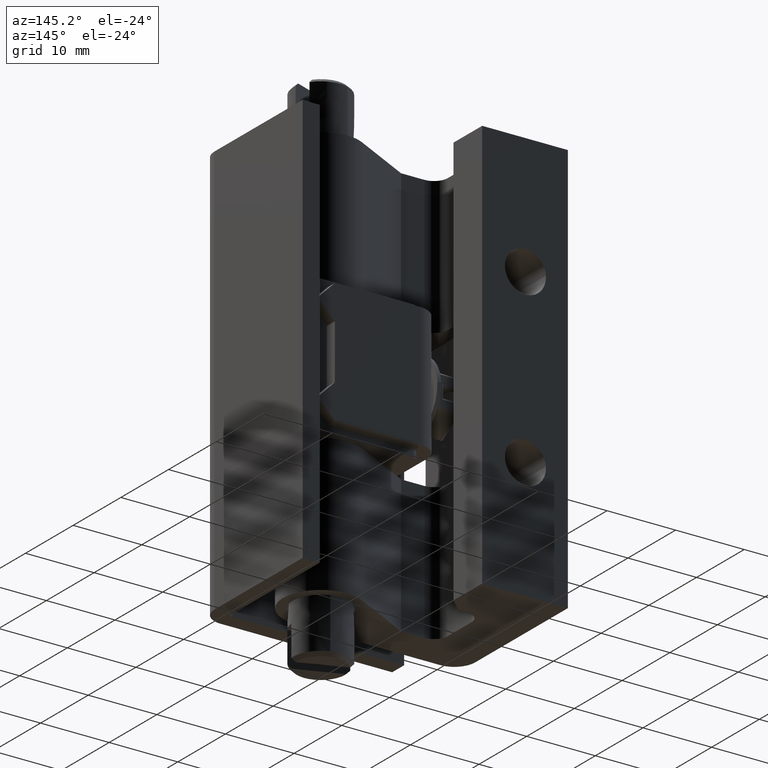
[diagram: clean part render]
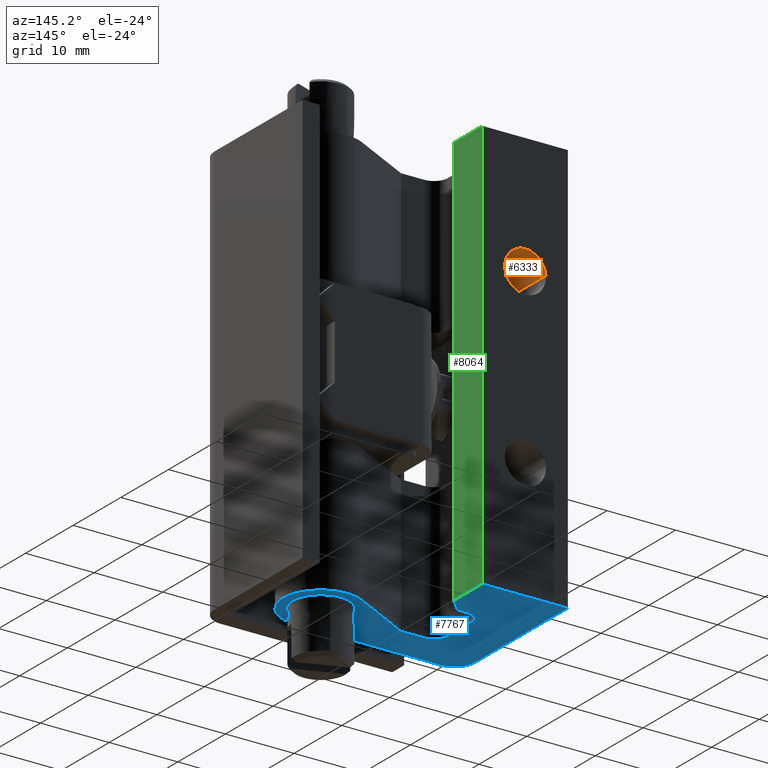
[diagram: same view with three faces highlighted in distinct colors, each labeled with its STEP entity id]
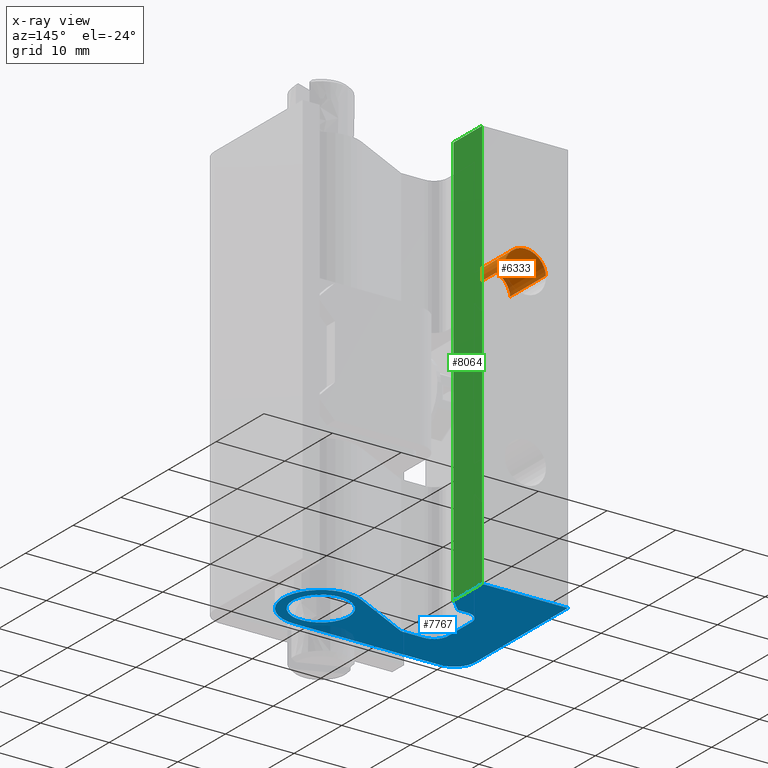
[diagram: x-ray of the same camera — body ghosted, the three highlighted faces saturated]
A machine part, auxiliary view with three faces highlighted in distinct colors.
The next image is the same camera in x-ray (body ghosted, the three faces saturated) — at least one of them is partly hidden behind the body in this view.
Their STEP definitions:

[orange] entity #6333 — the highlighted face is a freeform B-spline surface patch.
#6231=CARTESIAN_POINT('',(-20.994063378338783,9.312500807456608,50.493324434760829));
#6232=CARTESIAN_POINT('',(-20.992413332187677,9.312500807456608,50.514290258980928));
#6233=CARTESIAN_POINT('',(-20.755376331909403,9.312500807456607,53.526130914565321));
#6234=CARTESIAN_POINT('',(-17.764624330710010,9.312500807456607,53.290753627381783));
#6235=CARTESIAN_POINT('',(-14.773872329510626,9.312500807456607,53.055376340198244));
#6236=CARTESIAN_POINT('',(-15.010908922371899,9.312500807456608,50.043540861337704));
#6237=CARTESIAN_POINT('',(-15.012558565844479,9.312500807456603,50.022580153633285));
#6238=CARTESIAN_POINT('',(-20.994063378338783,17.192188307456657,50.493324434760829));
#6239=CARTESIAN_POINT('',(-20.992413332187677,17.192188307456657,50.514290258980928));
#6240=CARTESIAN_POINT('',(-20.755376331909403,17.192188307456647,53.526130914565321));
#6241=CARTESIAN_POINT('',(-17.764624330710010,17.192188307456650,53.290753627381783));
#6242=CARTESIAN_POINT('',(-14.773872329510626,17.192188307456647,53.055376340198244));
#6243=CARTESIAN_POINT('',(-15.010908922371899,17.192188307456661,50.043540861337704));
#6244=CARTESIAN_POINT('',(-15.012558565844479,17.192188307456650,50.022580153633285));
#6252=(BOUNDED_SURFACE()B_SPLINE_SURFACE(2,1,((#6231,#6238),(#6232,#6239),(#6233,#6240),(#6234,#6241),(#6235,#6242),(#6236,#6243),(#6237,#6244)),.UNSPECIFIED.,.F.,.F.,.U.)B_SPLINE_SURFACE_WITH_KNOTS((3,1,2,1,3),(2,2),(0.0,0.049711783310515,5.020274531787670,9.990837280264824,10.040536824870060),(0.0,7.879687500000051),.UNSPECIFIED.)GEOMETRIC_REPRESENTATION_ITEM()RATIONAL_B_SPLINE_SURFACE(((1.005858589847290,1.005858589847290),(1.002929294923645,1.002929294923645),(0.707106781186548,0.707106781186548),(1.0,1.0),(0.707106781186548,0.707106781186548),(1.002928573751020,1.002928573751020),(1.005857147502041,1.005857147502041)))REPRESENTATION_ITEM('')SURFACE());
#6253=CARTESIAN_POINT('',(-18.000001617893549,9.500000807456610,53.300001626182407));
#6254=VERTEX_POINT('',#6253);
#6255=CARTESIAN_POINT('',(-20.990754031382910,9.500000807456525,50.535373674607712));
#6256=VERTEX_POINT('',#6255);
#6257=CARTESIAN_POINT('',(-18.000001617893549,9.500000807456610,53.300001626182407));
#6258=CARTESIAN_POINT('',(-20.773177965524965,9.500000807456610,53.300001626182407));
#6259=CARTESIAN_POINT('',(-20.990754031382917,9.500000807456523,50.535373674607719));
#6267=(BOUNDED_CURVE()B_SPLINE_CURVE(2,(#6257,#6258,#6259),.UNSPECIFIED.,.F.,.U.)B_SPLINE_CURVE_WITH_KNOTS((3,3),(0.0,0.236331600908960),.UNSPECIFIED.)CURVE()GEOMETRIC_REPRESENTATION_ITEM()RATIONAL_B_SPLINE_CURVE((1.0,0.723120306809754,0.969723982826167))REPRESENTATION_ITEM(''));
#6268=EDGE_CURVE('',#6254,#6256,#6267,.T.);
#6269=ORIENTED_EDGE('',*,*,#6268,.T.);
#6270=CARTESIAN_POINT('',(-20.990754026399159,17.000000807456651,50.535373737935082));
#6271=VERTEX_POINT('',#6270);
#6272=CARTESIAN_POINT('',(-20.990754031382910,9.500000807456525,50.535373674607712));
#6273=CARTESIAN_POINT('',(-20.990754026399159,17.000000807456651,50.535373737935082));
#6274=QUASI_UNIFORM_CURVE('',1,(#6272,#6273),.UNSPECIFIED.,.F.,.U.);
#6275=EDGE_CURVE('',#6256,#6271,#6274,.T.);
#6276=ORIENTED_EDGE('',*,*,#6275,.T.);
#6277=CARTESIAN_POINT('',(-18.000001617893549,17.000000807456651,53.300001626182407));
#6278=VERTEX_POINT('',#6277);
#6279=CARTESIAN_POINT('',(-18.000001617893549,17.000000807456651,53.300001626182407));
#6280=CARTESIAN_POINT('',(-20.773177906623072,17.000000807456651,53.300001626182386));
#6281=CARTESIAN_POINT('',(-20.990754026399166,17.000000807456651,50.535373737935075));
#6289=(BOUNDED_CURVE()B_SPLINE_CURVE(2,(#6279,#6280,#6281),.UNSPECIFIED.,.F.,.U.)B_SPLINE_CURVE_WITH_KNOTS((3,3),(0.0,0.236331597279148),.UNSPECIFIED.)CURVE()GEOMETRIC_REPRESENTATION_ITEM()RATIONAL_B_SPLINE_CURVE((1.0,0.723120311062343,0.969723975251008))REPRESENTATION_ITEM(''));
#6290=EDGE_CURVE('',#6278,#6271,#6289,.T.);
#6291=ORIENTED_EDGE('',*,*,#6290,.F.);
#6292=CARTESIAN_POINT('',(-15.009249209387940,17.000000807456651,50.064629514429733));
#6293=VERTEX_POINT('',#6292);
#6294=CARTESIAN_POINT('',(-15.009249209387933,17.000000807456647,50.064629514429726));
#6295=CARTESIAN_POINT('',(-15.000001617893554,17.000000807456651,50.182133904883152));
#6296=CARTESIAN_POINT('',(-15.000001617893551,17.000000807456651,50.300001626182400));
#6297=CARTESIAN_POINT('',(-15.000001617893560,17.000000807456647,53.300001626182400));
#6298=CARTESIAN_POINT('',(-18.000001617893549,17.000000807456651,53.300001626182407));
#6306=(BOUNDED_CURVE()B_SPLINE_CURVE(2,(#6294,#6295,#6296,#6297,#6298),.UNSPECIFIED.,.F.,.U.)B_SPLINE_CURVE_WITH_KNOTS((3,2,3),(0.736331597279148,0.750000000000000,1.0),.UNSPECIFIED.)CURVE()GEOMETRIC_REPRESENTATION_ITEM()RATIONAL_B_SPLINE_CURVE((0.969723975251008,0.983986470124205,1.0,0.707106781186548,1.0))REPRESENTATION_ITEM(''));
#6307=EDGE_CURVE('',#6293,#6278,#6306,.T.);
#6308=ORIENTED_EDGE('',*,*,#6307,.F.);
#6309=CARTESIAN_POINT('',(-15.009249204404190,9.500000807456525,50.064629577757088));
#6310=VERTEX_POINT('',#6309);
#6311=CARTESIAN_POINT('',(-15.009249204404190,9.500000807456525,50.064629577757088));
#6312=CARTESIAN_POINT('',(-15.009249209387940,17.000000807456651,50.064629514429733));
#6313=QUASI_UNIFORM_CURVE('',1,(#6311,#6312),.UNSPECIFIED.,.F.,.U.);
#6314=EDGE_CURVE('',#6310,#6293,#6313,.T.);
#6315=ORIENTED_EDGE('',*,*,#6314,.F.);
#6316=CARTESIAN_POINT('',(-15.009249204404188,9.500000807456525,50.064629577757088));
#6317=CARTESIAN_POINT('',(-15.000001617893551,9.500000807456610,50.182133936693766));
#6318=CARTESIAN_POINT('',(-15.000001617893551,9.500000807456610,50.300001626182400));
#6319=CARTESIAN_POINT('',(-15.000001617893560,9.500000807456610,53.300001626182400));
#6320=CARTESIAN_POINT('',(-18.000001617893549,9.500000807456610,53.300001626182407));
#6328=(BOUNDED_CURVE()B_SPLINE_CURVE(2,(#6316,#6317,#6318,#6319,#6320),.UNSPECIFIED.,.F.,.U.)B_SPLINE_CURVE_WITH_KNOTS((3,2,3),(0.736331600908960,0.750000000000000,1.0),.UNSPECIFIED.)CURVE()GEOMETRIC_REPRESENTATION_ITEM()RATIONAL_B_SPLINE_CURVE((0.969723982826167,0.983986474376793,1.0,0.707106781186548,1.0))REPRESENTATION_ITEM(''));
#6329=EDGE_CURVE('',#6310,#6254,#6328,.T.);
#6330=ORIENTED_EDGE('',*,*,#6329,.T.);
#6331=EDGE_LOOP('',(#6269,#6276,#6291,#6308,#6315,#6330));
#6332=FACE_OUTER_BOUND('',#6331,.T.);
#6333=ADVANCED_FACE('',(#6332),#6252,.F.);

[blue] entity #7767 — the highlighted face is a freeform B-spline surface patch.
#6834=CARTESIAN_POINT('',(0.483940362109844,-4.071339058088996,7.799999607540631));
#6835=VERTEX_POINT('',#6834);
#6841=CARTESIAN_POINT('',(-4.100000000000001,0.0,7.799999607540630));
#6842=VERTEX_POINT('',#6841);
#6843=CARTESIAN_POINT('',(0.483940362109844,-4.071339058088996,7.799999607540631));
#6844=CARTESIAN_POINT('',(0.242818890590147,-4.100000000000001,7.799999607540630));
#6845=CARTESIAN_POINT('',(0.0,-4.100000000000001,7.799999607540630));
#6846=CARTESIAN_POINT('',(-4.100000000000001,-4.100000000000001,7.799999607540632));
#6847=CARTESIAN_POINT('',(-4.100000000000001,0.0,7.799999607540630));
#6855=(BOUNDED_CURVE()B_SPLINE_CURVE(2,(#6843,#6844,#6845,#6846,#6847),.UNSPECIFIED.,.F.,.U.)B_SPLINE_CURVE_WITH_KNOTS((3,2,3),(0.229562473514222,0.250000000000000,0.500000000000000),.UNSPECIFIED.)CURVE()GEOMETRIC_REPRESENTATION_ITEM()RATIONAL_B_SPLINE_CURVE((0.956026754185098,0.976055948331981,1.0,0.707106781186547,1.0))REPRESENTATION_ITEM(''));
#6856=EDGE_CURVE('',#6835,#6842,#6855,.T.);
#6858=CARTESIAN_POINT('',(-0.250299012295861,4.092352673517242,7.799999607540631));
#6859=VERTEX_POINT('',#6858);
#6860=CARTESIAN_POINT('',(-4.100000000000001,0.0,7.799999607540630));
#6861=CARTESIAN_POINT('',(-4.100000000000000,3.856894873930086,7.799999607540631));
#6862=CARTESIAN_POINT('',(-0.250299012295861,4.092352673517243,7.799999607540631));
#6870=(BOUNDED_CURVE()B_SPLINE_CURVE(2,(#6860,#6861,#6862),.UNSPECIFIED.,.F.,.U.)B_SPLINE_CURVE_WITH_KNOTS((3,3),(0.500000000000000,0.739332962224854),.UNSPECIFIED.)CURVE()GEOMETRIC_REPRESENTATION_ITEM()RATIONAL_B_SPLINE_CURVE((1.0,0.719603993303216,0.976072041636523))REPRESENTATION_ITEM(''));
#6871=EDGE_CURVE('',#6842,#6859,#6870,.T.);
#6945=CARTESIAN_POINT('',(4.100000000000001,0.0,7.799999607540630));
#6946=VERTEX_POINT('',#6945);
#6947=CARTESIAN_POINT('',(-0.250299012295861,4.092352673517242,7.799999607540631));
#6948=CARTESIAN_POINT('',(-0.125266329727731,4.100000000000001,7.799999607540630));
#6949=CARTESIAN_POINT('',(0.0,4.100000000000001,7.799999607540630));
#6950=CARTESIAN_POINT('',(4.100000000000001,4.100000000000001,7.799999607540632));
#6951=CARTESIAN_POINT('',(4.100000000000001,0.0,7.799999607540630));
#6959=(BOUNDED_CURVE()B_SPLINE_CURVE(2,(#6947,#6948,#6949,#6950,#6951),.UNSPECIFIED.,.F.,.U.)B_SPLINE_CURVE_WITH_KNOTS((3,2,3),(0.739332962224854,0.750000000000000,1.0),.UNSPECIFIED.)CURVE()GEOMETRIC_REPRESENTATION_ITEM()RATIONAL_B_SPLINE_CURVE((0.976072041636524,0.987502787883332,1.0,0.707106781186547,1.0))REPRESENTATION_ITEM(''));
#6960=EDGE_CURVE('',#6859,#6946,#6959,.T.);
#6962=CARTESIAN_POINT('',(4.100000000000001,0.0,7.799999607540630));
#6963=CARTESIAN_POINT('',(4.099999999999999,-3.641515556369739,7.799999607540630));
#6964=CARTESIAN_POINT('',(0.483940362109844,-4.071339058088997,7.799999607540631));
#6972=(BOUNDED_CURVE()B_SPLINE_CURVE(2,(#6962,#6963,#6964),.UNSPECIFIED.,.F.,.U.)B_SPLINE_CURVE_WITH_KNOTS((3,3),(0.0,0.229562473514222),.UNSPECIFIED.)CURVE()GEOMETRIC_REPRESENTATION_ITEM()RATIONAL_B_SPLINE_CURVE((1.0,0.731050832854567,0.956026754185097))REPRESENTATION_ITEM(''));
#6973=EDGE_CURVE('',#6946,#6835,#6972,.T.);
#7627=CARTESIAN_POINT('',(-25.683516753970050,-6.623875401835988,7.799999607540610));
#7628=CARTESIAN_POINT('',(6.983494171195461,-6.623875401835988,7.799999607540610));
#7629=CARTESIAN_POINT('',(-25.683516753970050,18.123874741062469,7.799999607540610));
#7630=CARTESIAN_POINT('',(6.983494171195461,18.123874741062469,7.799999607540610));
#7631=B_SPLINE_SURFACE_WITH_KNOTS('',1,1,((#7627,#7629),(#7628,#7630)),.UNSPECIFIED.,.F.,.F.,.U.,(2,2),(2,2),(0.0,32.667010925165513),(0.0,24.747750142898461),.UNSPECIFIED.);
#7632=CARTESIAN_POINT('',(-2.585470971212700,4.854415173402281,7.799999607540630));
#7633=VERTEX_POINT('',#7632);
#7634=CARTESIAN_POINT('',(-0.000000762939507,-5.500000261236051,7.799999607540630));
#7635=VERTEX_POINT('',#7634);
#7636=CARTESIAN_POINT('',(-2.585470971212700,4.854415173402281,7.799999607540630));
#7637=CARTESIAN_POINT('',(0.772540669476826,6.642898182352915,7.799999607540630));
#7638=CARTESIAN_POINT('',(3.630496797682121,4.131523972569502,7.799999607540630));
#7639=CARTESIAN_POINT('',(6.488452925887415,1.620149762786091,7.799999607540630));
#7640=CARTESIAN_POINT('',(5.146521645543292,-1.939925249224952,7.799999607540630));
#7641=CARTESIAN_POINT('',(3.804590365199166,-5.500000261236001,7.799999607540630));
#7642=CARTESIAN_POINT('',(-0.000000762939507,-5.500000261236051,7.799999607540630));
#7650=(BOUNDED_CURVE()B_SPLINE_CURVE(2,(#7636,#7637,#7638,#7639,#7640,#7641,#7642),.UNSPECIFIED.,.F.,.U.)B_SPLINE_CURVE_WITH_KNOTS((3,2,2,3),(0.0,0.333333333333333,0.666666666666667,1.0),.UNSPECIFIED.)CURVE()GEOMETRIC_REPRESENTATION_ITEM()RATIONAL_B_SPLINE_CURVE((1.0,0.822409163654037,1.0,0.822409163654037,1.0,0.822409163654037,1.0))REPRESENTATION_ITEM(''));
#7651=EDGE_CURVE('',#7633,#7635,#7650,.T.);
#7652=ORIENTED_EDGE('',*,*,#7651,.T.);
#7653=CARTESIAN_POINT('',(-21.200001769885450,-5.500000261236051,7.799999607540630));
#7654=VERTEX_POINT('',#7653);
#7655=CARTESIAN_POINT('',(-0.000000762939507,-5.500000261236051,7.799999607540630));
#7656=CARTESIAN_POINT('',(-21.200001769885450,-5.500000261236051,7.799999607540630));
#7657=QUASI_UNIFORM_CURVE('',1,(#7655,#7656),.UNSPECIFIED.,.F.,.U.);
#7658=EDGE_CURVE('',#7635,#7654,#7657,.T.);
#7659=ORIENTED_EDGE('',*,*,#7658,.T.);
#7660=CARTESIAN_POINT('',(-24.200001912377800,-2.500000118743740,7.799999607540630));
#7661=VERTEX_POINT('',#7660);
#7662=CARTESIAN_POINT('',(-21.200001769885450,-5.500000261235975,7.799999607540630));
#7663=CARTESIAN_POINT('',(-24.200001912377800,-5.500000261235974,7.799999607540632));
#7664=CARTESIAN_POINT('',(-24.200001912377800,-2.500000118743740,7.799999607540630));
#7672=(BOUNDED_CURVE()B_SPLINE_CURVE(2,(#7662,#7663,#7664),.UNSPECIFIED.,.F.,.U.)CURVE()GEOMETRIC_REPRESENTATION_ITEM()QUASI_UNIFORM_CURVE()RATIONAL_B_SPLINE_CURVE((1.0,0.707106781186547,1.0))REPRESENTATION_ITEM(''));
#7673=EDGE_CURVE('',#7654,#7661,#7672,.T.);
#7674=ORIENTED_EDGE('',*,*,#7673,.T.);
#7675=CARTESIAN_POINT('',(-24.200001912377751,17.000000807456651,7.799999607540630));
#7676=VERTEX_POINT('',#7675);
#7677=CARTESIAN_POINT('',(-24.200001912377800,-2.500000118743740,7.799999607540630));
#7678=CARTESIAN_POINT('',(-24.200001912377751,17.000000807456651,7.799999607540630));
#7679=QUASI_UNIFORM_CURVE('',1,(#7677,#7678),.UNSPECIFIED.,.F.,.U.);
#7680=EDGE_CURVE('',#7661,#7676,#7679,.T.);
#7681=ORIENTED_EDGE('',*,*,#7680,.T.);
#7682=CARTESIAN_POINT('',(-11.700001318659620,17.000000807456651,7.799999607540630));
#7683=VERTEX_POINT('',#7682);
#7684=CARTESIAN_POINT('',(-24.200001912377751,17.000000807456651,7.799999607540630));
#7685=CARTESIAN_POINT('',(-11.700001318659620,17.000000807456651,7.799999607540630));
#7686=QUASI_UNIFORM_CURVE('',1,(#7684,#7685),.UNSPECIFIED.,.F.,.U.);
#7687=EDGE_CURVE('',#7676,#7683,#7686,.T.);
#7688=ORIENTED_EDGE('',*,*,#7687,.T.);
#7689=CARTESIAN_POINT('',(-11.700001318659620,11.000000522471920,7.799999607540630));
#7690=VERTEX_POINT('',#7689);
#7691=CARTESIAN_POINT('',(-11.700001318659620,17.000000807456651,7.799999607540630));
#7692=CARTESIAN_POINT('',(-11.700001318659620,11.000000522471920,7.799999607540630));
#7693=QUASI_UNIFORM_CURVE('',1,(#7691,#7692),.UNSPECIFIED.,.F.,.U.);
#7694=EDGE_CURVE('',#7683,#7690,#7693,.T.);
#7695=ORIENTED_EDGE('',*,*,#7694,.T.);
#7696=CARTESIAN_POINT('',(-13.700001413654521,9.000000427477028,7.799999607540630));
#7697=VERTEX_POINT('',#7696);
#7698=CARTESIAN_POINT('',(-11.700001318659620,11.000000522471920,7.799999607540630));
#7699=CARTESIAN_POINT('',(-13.700001413654521,9.000000427477028,7.799999607540630));
#7700=QUASI_UNIFORM_CURVE('',1,(#7698,#7699),.UNSPECIFIED.,.F.,.U.);
#7701=EDGE_CURVE('',#7690,#7697,#7700,.T.);
#7702=ORIENTED_EDGE('',*,*,#7701,.T.);
#7703=CARTESIAN_POINT('',(-15.100001480151001,9.000000427477028,7.799999607540630));
#7704=VERTEX_POINT('',#7703);
#7705=CARTESIAN_POINT('',(-13.700001413654521,9.000000427477028,7.799999607540630));
#7706=CARTESIAN_POINT('',(-15.100001480151001,9.000000427477028,7.799999607540630));
#7707=QUASI_UNIFORM_CURVE('',1,(#7705,#7706),.UNSPECIFIED.,.F.,.U.);
#7708=EDGE_CURVE('',#7697,#7704,#7707,.T.);
#7709=ORIENTED_EDGE('',*,*,#7708,.T.);
#7710=CARTESIAN_POINT('',(-17.100001575145850,7.000000332482130,7.799999607540630));
#7711=VERTEX_POINT('',#7710);
#7712=CARTESIAN_POINT('',(-17.100001575145850,7.000000332482130,7.799999607540630));
#7713=CARTESIAN_POINT('',(-17.100001575145846,9.000000427477030,7.799999607540632));
#7714=CARTESIAN_POINT('',(-15.100001480150951,9.000000427477030,7.799999607540630));
#7722=(BOUNDED_CURVE()B_SPLINE_CURVE(2,(#7712,#7713,#7714),.UNSPECIFIED.,.F.,.U.)CURVE()GEOMETRIC_REPRESENTATION_ITEM()QUASI_UNIFORM_CURVE()RATIONAL_B_SPLINE_CURVE((1.0,0.707106781186547,1.0))REPRESENTATION_ITEM(''));
#7723=EDGE_CURVE('',#7711,#7704,#7722,.T.);
#7724=ORIENTED_EDGE('',*,*,#7723,.F.);
#7725=CARTESIAN_POINT('',(-17.100001575145850,2.000000094994840,7.799999607540630));
#7726=VERTEX_POINT('',#7725);
#7727=CARTESIAN_POINT('',(-17.100001575145850,7.000000332482130,7.799999607540630));
#7728=CARTESIAN_POINT('',(-17.100001575145850,2.000000094994840,7.799999607540630));
#7729=QUASI_UNIFORM_CURVE('',1,(#7727,#7728),.UNSPECIFIED.,.F.,.U.);
#7730=EDGE_CURVE('',#7711,#7726,#7729,.T.);
#7731=ORIENTED_EDGE('',*,*,#7730,.T.);
#7732=CARTESIAN_POINT('',(-15.100001480150951,-4.973799E-014,7.799999607540630));
#7733=VERTEX_POINT('',#7732);
#7734=CARTESIAN_POINT('',(-15.100001480150951,-4.987330E-014,7.799999607540630));
#7735=CARTESIAN_POINT('',(-17.100001575145857,-4.987330E-014,7.799999607540630));
#7736=CARTESIAN_POINT('',(-17.100001575145860,2.000000094994860,7.799999607540630));
#7744=(BOUNDED_CURVE()B_SPLINE_CURVE(2,(#7734,#7735,#7736),.UNSPECIFIED.,.F.,.U.)CURVE()GEOMETRIC_REPRESENTATION_ITEM()QUASI_UNIFORM_CURVE()RATIONAL_B_SPLINE_CURVE((1.0,0.707106781186548,1.0))REPRESENTATION_ITEM(''));
#7745=EDGE_CURVE('',#7733,#7726,#7744,.T.);
#7746=ORIENTED_EDGE('',*,*,#7745,.F.);
#7747=CARTESIAN_POINT('',(-11.700001318660240,-7.105427E-014,7.799999607540630));
#7748=VERTEX_POINT('',#7747);
#7749=CARTESIAN_POINT('',(-15.100001480150951,-4.973799E-014,7.799999607540630));
#7750=CARTESIAN_POINT('',(-11.700001318660240,-7.105427E-014,7.799999607540630));
#7751=QUASI_UNIFORM_CURVE('',1,(#7749,#7750),.UNSPECIFIED.,.F.,.U.);
#7752=EDGE_CURVE('',#7733,#7748,#7751,.T.);
#7753=ORIENTED_EDGE('',*,*,#7752,.T.);
#7754=CARTESIAN_POINT('',(-11.700001318660240,-7.105427E-014,7.799999607540630));
#7755=CARTESIAN_POINT('',(-2.585470971212700,4.854415173402281,7.799999607540630));
#7756=QUASI_UNIFORM_CURVE('',1,(#7754,#7755),.UNSPECIFIED.,.F.,.U.);
#7757=EDGE_CURVE('',#7748,#7633,#7756,.T.);
#7758=ORIENTED_EDGE('',*,*,#7757,.T.);
#7759=EDGE_LOOP('',(#7652,#7659,#7674,#7681,#7688,#7695,#7702,#7709,#7724,#7731,#7746,#7753,#7758));
#7760=FACE_OUTER_BOUND('',#7759,.T.);
#7761=ORIENTED_EDGE('',*,*,#6871,.F.);
#7762=ORIENTED_EDGE('',*,*,#6856,.F.);
#7763=ORIENTED_EDGE('',*,*,#6973,.F.);
#7764=ORIENTED_EDGE('',*,*,#6960,.F.);
#7765=EDGE_LOOP('',(#7761,#7762,#7763,#7764));
#7766=FACE_BOUND('',#7765,.T.);
#7767=ADVANCED_FACE('',(#7760,#7766),#7631,.F.);

[green] entity #8064 — the highlighted face is a freeform B-spline surface patch.
#7682=CARTESIAN_POINT('',(-11.700001318659620,17.000000807456651,7.799999607540630));
#7683=VERTEX_POINT('',#7682);
#7689=CARTESIAN_POINT('',(-11.700001318659620,11.000000522471920,7.799999607540630));
#7690=VERTEX_POINT('',#7689);
#7691=CARTESIAN_POINT('',(-11.700001318659620,17.000000807456651,7.799999607540630));
#7692=CARTESIAN_POINT('',(-11.700001318659620,11.000000522471920,7.799999607540630));
#7693=QUASI_UNIFORM_CURVE('',1,(#7691,#7692),.UNSPECIFIED.,.F.,.U.);
#7694=EDGE_CURVE('',#7683,#7690,#7693,.T.);
#7852=CARTESIAN_POINT('',(-11.700001318659620,11.000000522471920,67.800002457387706));
#7853=VERTEX_POINT('',#7852);
#7859=CARTESIAN_POINT('',(-11.700001318659620,17.000000807456651,67.800002457387706));
#7860=VERTEX_POINT('',#7859);
#7861=CARTESIAN_POINT('',(-11.700001318659620,17.000000807456651,67.800002457387706));
#7862=CARTESIAN_POINT('',(-11.700001318659620,11.000000522471920,67.800002457387706));
#7863=QUASI_UNIFORM_CURVE('',1,(#7861,#7862),.UNSPECIFIED.,.F.,.U.);
#7864=EDGE_CURVE('',#7860,#7853,#7863,.T.);
#8039=CARTESIAN_POINT('',(-11.700001318659620,11.000000522471920,67.800002457387706));
#8040=CARTESIAN_POINT('',(-11.700001318659620,11.000000522471920,7.799999607540630));
#8041=QUASI_UNIFORM_CURVE('',1,(#8039,#8040),.UNSPECIFIED.,.F.,.U.);
#8042=EDGE_CURVE('',#7853,#7690,#8041,.T.);
#8049=CARTESIAN_POINT('',(-11.700001318659620,10.700301013328209,70.797003046683017));
#8050=CARTESIAN_POINT('',(-11.700001318659620,10.700301013328209,4.802997945361661));
#8051=CARTESIAN_POINT('',(-11.700001318659620,17.299700048379449,70.797003046683017));
#8052=CARTESIAN_POINT('',(-11.700001318659620,17.299700048379449,4.802997945361661));
#8053=B_SPLINE_SURFACE_WITH_KNOTS('',1,1,((#8049,#8051),(#8050,#8052)),.UNSPECIFIED.,.F.,.F.,.U.,(2,2),(2,2),(0.0,65.994005101321363),(0.0,6.599399035051238),.UNSPECIFIED.);
#8054=ORIENTED_EDGE('',*,*,#7694,.F.);
#8055=CARTESIAN_POINT('',(-11.700001318659620,17.000000807456651,67.800002457387706));
#8056=CARTESIAN_POINT('',(-11.700001318659620,17.000000807456651,7.799999607540630));
#8057=QUASI_UNIFORM_CURVE('',1,(#8055,#8056),.UNSPECIFIED.,.F.,.U.);
#8058=EDGE_CURVE('',#7860,#7683,#8057,.T.);
#8059=ORIENTED_EDGE('',*,*,#8058,.F.);
#8060=ORIENTED_EDGE('',*,*,#7864,.T.);
#8061=ORIENTED_EDGE('',*,*,#8042,.T.);
#8062=EDGE_LOOP('',(#8054,#8059,#8060,#8061));
#8063=FACE_OUTER_BOUND('',#8062,.T.);
#8064=ADVANCED_FACE('',(#8063),#8053,.T.);